MODEL slx_4a299dd0d83e
KIND model
CONFIG AbsTol = auto
CONFIG EnableMultiTasking = off
CONFIG FixedStep = auto
CONFIG InitFcn = initCallback
CONFIG MaxStep = auto
CONFIG MinStep = auto
CONFIG RelTol = 1e-3
CONFIG SampleTimeConstraint = Unconstrained
CONFIG Solver = FixedStepDiscrete
CONFIG SolverName = FixedStepDiscrete
CONFIG StartTime = 0.0
CONFIG StopFcn = stopCallback
CONFIG StopTime = stopTime
BLOCK [SubSystem] Capture Avalon Signals
  Ports = [4]
  RequestExecContextInheritance = off
BLOCK [ToWorkspace] Capture Avalon Signals/To Workspace
  FixptAsFi = on
  MaxDataPoints = inf
  Ports = [1]
  SampleTime = -1
  SaveFormat = Timeseries
  VariableName = Avalon_Sink_Data
BLOCK [ToWorkspace] Capture Avalon Signals/To Workspace1
  FixptAsFi = on
  MaxDataPoints = inf
  Ports = [1]
  SampleTime = -1
  SaveFormat = Timeseries
  VariableName = Avalon_Sink_Valid
BLOCK [ToWorkspace] Capture Avalon Signals/To Workspace2
  FixptAsFi = on
  MaxDataPoints = inf
  Ports = [1]
  SampleTime = -1
  SaveFormat = Timeseries
  VariableName = Avalon_Sink_Channel
BLOCK [ToWorkspace] Capture Avalon Signals/To Workspace3
  FixptAsFi = on
  MaxDataPoints = inf
  Ports = [1]
  SampleTime = -1
  SaveFormat = Timeseries
  VariableName = Avalon_Sink_Error
BLOCK [Inport] Capture Avalon Signals/channel
  IconDisplay = Port number
  Port = 3
BLOCK [Inport] Capture Avalon Signals/data
  IconDisplay = Port number
  Port = 2
BLOCK [Inport] Capture Avalon Signals/error
  IconDisplay = Port number
  Port = 4
BLOCK [Inport] Capture Avalon Signals/valid
  IconDisplay = Port number
BLOCK [Reference] DocBlock  REF=simulink/Model-Wide
Utilities/DocBlock
  Ports = []
  SourceBlock = simulink/Model-Wide\nUtilities/DocBlock
  SourceProductBaseCode = SL
  SourceProductName = Simulink
  SourceType = DocBlock
  UserDataPersistent = on
BLOCK [SubSystem] Generate Avalon Signals
  Ports = [0, 4]
  RequestExecContextInheritance = off
BLOCK [FromWorkspace] Generate Avalon Signals/Avalon Source Channel
  OutDataTypeStr = double
  SampleTime = mp.Ts_sim
  VariableName = mp.Avalon_Source_Channel
  ZeroCross = on
BLOCK [FromWorkspace] Generate Avalon Signals/Avalon Source Data 
  OutDataTypeStr = double
  SampleTime = mp.Ts_sim
  VariableName = mp.Avalon_Source_Data
  ZeroCross = on
BLOCK [FromWorkspace] Generate Avalon Signals/Avalon Source Error
  OutDataTypeStr = double
  SampleTime = mp.Ts_sim
  VariableName = mp.Avalon_Source_Error
  ZeroCross = on
BLOCK [FromWorkspace] Generate Avalon Signals/Avalon Source Valid
  OutDataTypeStr = double
  SampleTime = mp.Ts_sim
  VariableName = mp.Avalon_Source_Valid
  ZeroCross = on
BLOCK [DataTypeConversion] Generate Avalon Signals/Data Type Conversion
  OutDataTypeStr = fixdt(1,mp.W_bits,mp.F_bits)
  RndMeth = Floor
  SaturateOnIntegerOverflow = off
BLOCK [DataTypeConversion] Generate Avalon Signals/Data Type Conversion1
  OutDataTypeStr = fixdt(0,2,0)
  RndMeth = Floor
  SaturateOnIntegerOverflow = off
BLOCK [DataTypeConversion] Generate Avalon Signals/Data Type Conversion2
  OutDataTypeStr = boolean
  RndMeth = Floor
  SaturateOnIntegerOverflow = off
BLOCK [DataTypeConversion] Generate Avalon Signals/Data Type Conversion3
  OutDataTypeStr = fixdt(0,2,0)
  RndMeth = Floor
  SaturateOnIntegerOverflow = off
BLOCK [Outport] Generate Avalon Signals/channel
  IconDisplay = Port number
  Port = 3
  VectorParamsAs1DForOutWhenUnconnected = off
BLOCK [Outport] Generate Avalon Signals/data
  IconDisplay = Port number
  Port = 2
  VectorParamsAs1DForOutWhenUnconnected = off
BLOCK [Outport] Generate Avalon Signals/error
  IconDisplay = Port number
  Port = 4
  VectorParamsAs1DForOutWhenUnconnected = off
BLOCK [Outport] Generate Avalon Signals/valid
  IconDisplay = Port number
  VectorParamsAs1DForOutWhenUnconnected = off
BLOCK [SubSystem] Register Control Signals
  Ports = [0, 3]
  RequestExecContextInheritance = off
BLOCK [DataTypeConversion] Register Control Signals/Data Type Conversion1
  OutDataTypeStr = mp.register{3}.dataType
  RndMeth = Floor
  SaturateOnIntegerOverflow = off
BLOCK [DataTypeConversion] Register Control Signals/Data Type Conversion2
  OutDataTypeStr = mp.register{2}.dataType
  RndMeth = Floor
  SaturateOnIntegerOverflow = off
BLOCK [DataTypeConversion] Register Control Signals/Data Type Conversion3
  OutDataTypeStr = mp.register{1}.dataType
  RndMeth = Floor
  SaturateOnIntegerOverflow = off
BLOCK [FromWorkspace] Register Control Signals/Time Series Signal from Workspace 1
  OutDataTypeStr = double
  SampleTime = mp.Ts_sim
  VariableName = mp.register{1}.timeseries
  ZeroCross = on
BLOCK [FromWorkspace] Register Control Signals/Time Series Signal from Workspace 2
  OutDataTypeStr = double
  SampleTime = mp.Ts_sim
  VariableName = mp.register{2}.timeseries
  ZeroCross = on
BLOCK [FromWorkspace] Register Control Signals/Time Series Signal from Workspace 3
  OutDataTypeStr = double
  SampleTime = mp.Ts_sim
  VariableName = mp.register{3}.timeseries
  ZeroCross = on
BLOCK [Outport] Register Control Signals/register_control_bits
  IconDisplay = Port number
  Port = 2
  VectorParamsAs1DForOutWhenUnconnected = off
BLOCK [Outport] Register Control Signals/register_control_enable
  IconDisplay = Port number
  VectorParamsAs1DForOutWhenUnconnected = off
BLOCK [Outport] Register Control Signals/register_control_wet_dry_mix
  IconDisplay = Port number
  Port = 3
  VectorParamsAs1DForOutWhenUnconnected = off
BLOCK [SubSystem] dataplane
  Ports = [7, 4]
  RequestExecContextInheritance = off
  TreatAsAtomicUnit = on
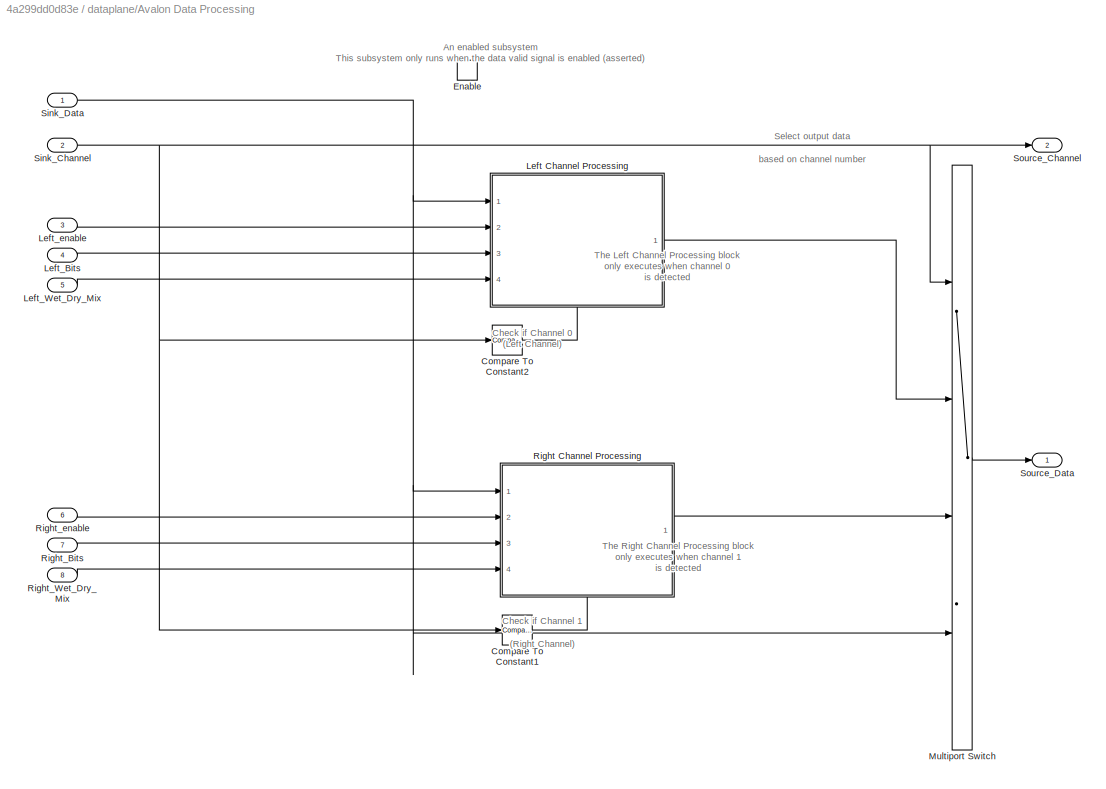
BLOCK [SubSystem] dataplane/Avalon Data Processing
  Ports = [8, 2, 1]
  RequestExecContextInheritance = off
  TreatAsAtomicUnit = on
BLOCK [Reference] dataplane/Avalon Data Processing/Compare To Constant1  REF=simulink/Logic and Bit
Operations/Compare
To Constant
  Ports = [1, 1]
  SourceBlock = simulink/Logic and Bit\nOperations/Compare\nTo Constant
  SourceProductBaseCode = SL
  SourceProductName = Simulink
  SourceType = Compare To Constant
BLOCK [Reference] dataplane/Avalon Data Processing/Compare To Constant2  REF=simulink/Logic and Bit
Operations/Compare
To Constant
  Ports = [1, 1]
  SourceBlock = simulink/Logic and Bit\nOperations/Compare\nTo Constant
  SourceProductBaseCode = SL
  SourceProductName = Simulink
  SourceType = Compare To Constant
BLOCK [EnablePort] dataplane/Avalon Data Processing/Enable
  Ports = []
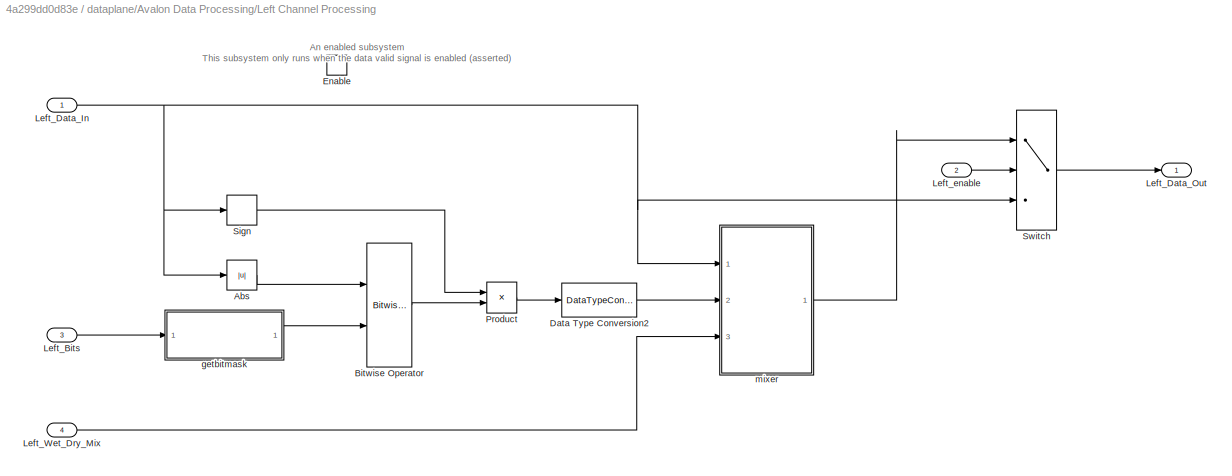
BLOCK [SubSystem] dataplane/Avalon Data Processing/Left Channel Processing
  Ports = [4, 1, 1]
  RequestExecContextInheritance = off
  TreatAsAtomicUnit = on
BLOCK [Abs] dataplane/Avalon Data Processing/Left Channel Processing/Abs
  OutDataTypeStr = fixdt(0,32,28)
  SaturateOnIntegerOverflow = off
BLOCK [Reference] dataplane/Avalon Data Processing/Left Channel Processing/Bitwise Operator  REF=simulink/Logic and Bit
Operations/Bitwise
Operator
  Ports = [2, 1]
  SourceBlock = simulink/Logic and Bit\nOperations/Bitwise\nOperator
  SourceProductBaseCode = SL
  SourceProductName = Simulink
  SourceType = Bitwise Operator
BLOCK [DataTypeConversion] dataplane/Avalon Data Processing/Left Channel Processing/Data Type Conversion2
  OutDataTypeStr = fixdt(1,mp.W_bits,mp.F_bits)
  RndMeth = Floor
  SaturateOnIntegerOverflow = off
BLOCK [EnablePort] dataplane/Avalon Data Processing/Left Channel Processing/Enable
  Ports = []
BLOCK [Inport] dataplane/Avalon Data Processing/Left Channel Processing/Left_Bits
  IconDisplay = Port number
  Port = 3
BLOCK [Inport] dataplane/Avalon Data Processing/Left Channel Processing/Left_Data_In
  IconDisplay = Port number
BLOCK [Outport] dataplane/Avalon Data Processing/Left Channel Processing/Left_Data_Out 
  IconDisplay = Port number
  InitialOutput = 0
  VectorParamsAs1DForOutWhenUnconnected = off
BLOCK [Inport] dataplane/Avalon Data Processing/Left Channel Processing/Left_Wet_Dry_Mix
  IconDisplay = Port number
  Port = 4
BLOCK [Inport] dataplane/Avalon Data Processing/Left Channel Processing/Left_enable
  IconDisplay = Port number
  Port = 2
BLOCK [Product] dataplane/Avalon Data Processing/Left Channel Processing/Product
  InputSameDT = off
  OutDataTypeStr = Inherit: Inherit via internal rule
  Ports = [2, 1]
  RndMeth = Floor
  SaturateOnIntegerOverflow = off
BLOCK [Signum] dataplane/Avalon Data Processing/Left Channel Processing/Sign
BLOCK [Switch] dataplane/Avalon Data Processing/Left Channel Processing/Switch
  Criteria = u2 ~= 0
  InputSameDT = off
  SaturateOnIntegerOverflow = off
BLOCK [SubSystem] dataplane/Avalon Data Processing/Left Channel Processing/getbitmask
  ErrorFcn = Stateflow.Translate.translate
  PermitHierarchicalResolution = ExplicitOnly
  Ports = [1, 1]
  RequestExecContextInheritance = off
  SFBlockType = MATLAB Function
  TreatAsAtomicUnit = on
BLOCK [Demux] dataplane/Avalon Data Processing/Left Channel Processing/getbitmask/ Demux 
  Outputs = 1
  Ports = [1, 1]
BLOCK [S-Function] dataplane/Avalon Data Processing/Left Channel Processing/getbitmask/ SFunction 
  EnableBusSupport = on
  FunctionName = sf_sfun
  PortCounts = [1 2]
  Ports = [1, 2]
  SFcnIsStateOwnerBlock = off
  SFunctionDeploymentMode = off
  Tag = Stateflow S-Function 2
BLOCK [Terminator] dataplane/Avalon Data Processing/Left Channel Processing/getbitmask/ Terminator 
BLOCK [Inport] dataplane/Avalon Data Processing/Left Channel Processing/getbitmask/bitlevel
  IconDisplay = Port number
BLOCK [Outport] dataplane/Avalon Data Processing/Left Channel Processing/getbitmask/bitmask
  IconDisplay = Port number
  VectorParamsAs1DForOutWhenUnconnected = off
BLOCK [SubSystem] dataplane/Avalon Data Processing/Left Channel Processing/mixer
  Ports = [3, 1]
  RequestExecContextInheritance = off
BLOCK [Sum] dataplane/Avalon Data Processing/Left Channel Processing/mixer/Add
  InputSameDT = off
  OutDataTypeStr = fixdt(1,mp.W_bits,mp.F_bits)
  Ports = [2, 1]
  SaturateOnIntegerOverflow = off
BLOCK [Constant] dataplane/Avalon Data Processing/Left Channel Processing/mixer/Constant
  OutDataTypeStr = Inherit: Inherit via back propagation
  SampleTime = -1
BLOCK [Product] dataplane/Avalon Data Processing/Left Channel Processing/mixer/Product
  InputSameDT = off
  OutDataTypeStr = Inherit: Keep MSB
  Ports = [2, 1]
  RndMeth = Floor
  SaturateOnIntegerOverflow = off
BLOCK [Product] dataplane/Avalon Data Processing/Left Channel Processing/mixer/Product1
  InputSameDT = off
  OutDataTypeStr = Inherit: Keep MSB
  Ports = [2, 1]
  RndMeth = Floor
  SaturateOnIntegerOverflow = off
BLOCK [Sum] dataplane/Avalon Data Processing/Left Channel Processing/mixer/Subtract
  Inputs = +-
  Ports = [2, 1]
  SaturateOnIntegerOverflow = off
BLOCK [Inport] dataplane/Avalon Data Processing/Left Channel Processing/mixer/dry_signal
  IconDisplay = Port number
BLOCK [Outport] dataplane/Avalon Data Processing/Left Channel Processing/mixer/output
  IconDisplay = Port number
  VectorParamsAs1DForOutWhenUnconnected = off
BLOCK [Inport] dataplane/Avalon Data Processing/Left Channel Processing/mixer/wet_dry_mix
  IconDisplay = Port number
  Port = 3
BLOCK [Inport] dataplane/Avalon Data Processing/Left Channel Processing/mixer/wet_signal
  IconDisplay = Port number
  Port = 2
BLOCK [Inport] dataplane/Avalon Data Processing/Left_Bits
  IconDisplay = Port number
  Port = 4
BLOCK [Inport] dataplane/Avalon Data Processing/Left_Wet_Dry_Mix
  IconDisplay = Port number
  Port = 5
BLOCK [Inport] dataplane/Avalon Data Processing/Left_enable
  IconDisplay = Port number
  Port = 3
BLOCK [MultiPortSwitch] dataplane/Avalon Data Processing/Multiport Switch
  DataPortOrder = Zero-based contiguous
  InputSameDT = off
  Ports = [4, 1]
  SaturateOnIntegerOverflow = off
  zeroidx = on
BLOCK [SubSystem] dataplane/Avalon Data Processing/Right Channel Processing
  Ports = [4, 1, 1]
  RequestExecContextInheritance = off
  TreatAsAtomicUnit = on
BLOCK [Abs] dataplane/Avalon Data Processing/Right Channel Processing/Abs
  OutDataTypeStr = fixdt(0,32,28)
  SaturateOnIntegerOverflow = off
BLOCK [Reference] dataplane/Avalon Data Processing/Right Channel Processing/Bitwise Operator  REF=simulink/Logic and Bit
Operations/Bitwise
Operator
  Ports = [2, 1]
  SourceBlock = simulink/Logic and Bit\nOperations/Bitwise\nOperator
  SourceProductBaseCode = SL
  SourceProductName = Simulink
  SourceType = Bitwise Operator
BLOCK [DataTypeConversion] dataplane/Avalon Data Processing/Right Channel Processing/Data Type Conversion2
  OutDataTypeStr = fixdt(1,mp.W_bits,mp.F_bits)
  RndMeth = Floor
  SaturateOnIntegerOverflow = off
BLOCK [EnablePort] dataplane/Avalon Data Processing/Right Channel Processing/Enable
  Ports = []
BLOCK [Product] dataplane/Avalon Data Processing/Right Channel Processing/Product
  InputSameDT = off
  OutDataTypeStr = Inherit: Inherit via internal rule
  Ports = [2, 1]
  RndMeth = Floor
  SaturateOnIntegerOverflow = off
BLOCK [Inport] dataplane/Avalon Data Processing/Right Channel Processing/Right_Bits
  IconDisplay = Port number
  Port = 3
BLOCK [Inport] dataplane/Avalon Data Processing/Right Channel Processing/Right_Data_In
  IconDisplay = Port number
BLOCK [Outport] dataplane/Avalon Data Processing/Right Channel Processing/Right_Data_Out 
  IconDisplay = Port number
  InitialOutput = 0
  VectorParamsAs1DForOutWhenUnconnected = off
BLOCK [Inport] dataplane/Avalon Data Processing/Right Channel Processing/Right_Wet_Dry_Mix
  IconDisplay = Port number
  Port = 4
BLOCK [Inport] dataplane/Avalon Data Processing/Right Channel Processing/Right_enable
  IconDisplay = Port number
  Port = 2
BLOCK [Signum] dataplane/Avalon Data Processing/Right Channel Processing/Sign
BLOCK [Switch] dataplane/Avalon Data Processing/Right Channel Processing/Switch
  Criteria = u2 ~= 0
  InputSameDT = off
  SaturateOnIntegerOverflow = off
BLOCK [SubSystem] dataplane/Avalon Data Processing/Right Channel Processing/getbitmask
  ErrorFcn = Stateflow.Translate.translate
  PermitHierarchicalResolution = ExplicitOnly
  Ports = [1, 1]
  RequestExecContextInheritance = off
  SFBlockType = MATLAB Function
  TreatAsAtomicUnit = on
BLOCK [Demux] dataplane/Avalon Data Processing/Right Channel Processing/getbitmask/ Demux 
  Outputs = 1
  Ports = [1, 1]
BLOCK [S-Function] dataplane/Avalon Data Processing/Right Channel Processing/getbitmask/ SFunction 
  EnableBusSupport = on
  FunctionName = sf_sfun
  PortCounts = [1 2]
  Ports = [1, 2]
  SFcnIsStateOwnerBlock = off
  SFunctionDeploymentMode = off
  Tag = Stateflow S-Function 1
BLOCK [Terminator] dataplane/Avalon Data Processing/Right Channel Processing/getbitmask/ Terminator 
BLOCK [Inport] dataplane/Avalon Data Processing/Right Channel Processing/getbitmask/bitlevel
  IconDisplay = Port number
BLOCK [Outport] dataplane/Avalon Data Processing/Right Channel Processing/getbitmask/bitmask
  IconDisplay = Port number
  VectorParamsAs1DForOutWhenUnconnected = off
BLOCK [SubSystem] dataplane/Avalon Data Processing/Right Channel Processing/mixer
  Ports = [3, 1]
  RequestExecContextInheritance = off
BLOCK [Sum] dataplane/Avalon Data Processing/Right Channel Processing/mixer/Add
  InputSameDT = off
  OutDataTypeStr = fixdt(1,mp.W_bits,mp.F_bits)
  Ports = [2, 1]
  SaturateOnIntegerOverflow = off
BLOCK [Constant] dataplane/Avalon Data Processing/Right Channel Processing/mixer/Constant
  OutDataTypeStr = Inherit: Inherit via back propagation
  SampleTime = -1
BLOCK [Product] dataplane/Avalon Data Processing/Right Channel Processing/mixer/Product
  InputSameDT = off
  OutDataTypeStr = Inherit: Keep MSB
  Ports = [2, 1]
  RndMeth = Floor
  SaturateOnIntegerOverflow = off
BLOCK [Product] dataplane/Avalon Data Processing/Right Channel Processing/mixer/Product1
  InputSameDT = off
  OutDataTypeStr = Inherit: Keep MSB
  Ports = [2, 1]
  RndMeth = Floor
  SaturateOnIntegerOverflow = off
BLOCK [Sum] dataplane/Avalon Data Processing/Right Channel Processing/mixer/Subtract
  Inputs = +-
  Ports = [2, 1]
  SaturateOnIntegerOverflow = off
BLOCK [Inport] dataplane/Avalon Data Processing/Right Channel Processing/mixer/dry_signal
  IconDisplay = Port number
BLOCK [Outport] dataplane/Avalon Data Processing/Right Channel Processing/mixer/output
  IconDisplay = Port number
  VectorParamsAs1DForOutWhenUnconnected = off
BLOCK [Inport] dataplane/Avalon Data Processing/Right Channel Processing/mixer/wet_dry_mix
  IconDisplay = Port number
  Port = 3
BLOCK [Inport] dataplane/Avalon Data Processing/Right Channel Processing/mixer/wet_signal
  IconDisplay = Port number
  Port = 2
BLOCK [Inport] dataplane/Avalon Data Processing/Right_Bits
  IconDisplay = Port number
  Port = 7
BLOCK [Inport] dataplane/Avalon Data Processing/Right_Wet_Dry_Mix
  IconDisplay = Port number
  Port = 8
BLOCK [Inport] dataplane/Avalon Data Processing/Right_enable
  IconDisplay = Port number
  Port = 6
BLOCK [Inport] dataplane/Avalon Data Processing/Sink_Channel
  IconDisplay = Port number
  Port = 2
BLOCK [Inport] dataplane/Avalon Data Processing/Sink_Data
  IconDisplay = Port number
BLOCK [Outport] dataplane/Avalon Data Processing/Source_Channel
  IconDisplay = Port number
  InitialOutput = 0
  Port = 2
  VectorParamsAs1DForOutWhenUnconnected = off
BLOCK [Outport] dataplane/Avalon Data Processing/Source_Data
  IconDisplay = Port number
  InitialOutput = 0
  VectorParamsAs1DForOutWhenUnconnected = off
BLOCK [Inport] dataplane/avalon_sink_channel
  IconDisplay = Port number
  Port = 3
BLOCK [Inport] dataplane/avalon_sink_data
  IconDisplay = Port number
  Port = 2
BLOCK [Inport] dataplane/avalon_sink_error
  IconDisplay = Port number
  Port = 4
BLOCK [Inport] dataplane/avalon_sink_valid
  IconDisplay = Port number
BLOCK [Outport] dataplane/avalon_source_channel
  IconDisplay = Port number
  Port = 3
  VectorParamsAs1DForOutWhenUnconnected = off
BLOCK [Outport] dataplane/avalon_source_data
  IconDisplay = Port number
  Port = 2
  VectorParamsAs1DForOutWhenUnconnected = off
BLOCK [Outport] dataplane/avalon_source_error
  IconDisplay = Port number
  Port = 4
  VectorParamsAs1DForOutWhenUnconnected = off
BLOCK [Outport] dataplane/avalon_source_valid
  IconDisplay = Port number
  VectorParamsAs1DForOutWhenUnconnected = off
BLOCK [Inport] dataplane/register_control_bits
  IconDisplay = Port number
  Port = 6
BLOCK [Inport] dataplane/register_control_enable
  IconDisplay = Port number
  Port = 5
BLOCK [Inport] dataplane/register_control_wet_dry_mix
  IconDisplay = Port number
  Port = 7
ANNOTATION (root): Steps for converting DataPlane block to VHDL
ANNOTATION (root): Run simulation first before clicking this box to Generate VHDL
ANNOTATION (root): Bitcrusher Avalon Stream Processing Example
ANNOTATION (root): This example shows how to connect the ADC (output) of the audio codec to the DAC (input) of the audio codec (AD1939). Audio data is just passed through with bit quatization applied to the left and right channels. Data is streamed in the data plane using the Avalon Streaming interface that uses the data-channel-valid protocol.
ANNOTATION (root): Author: Ross K. Snider Company: Flat Earth Inc 985 Technology Blvd Bozeman, MT 59718 <email> Create Date: September 24, 2019 Tool Version: MATLAB R2019a Revision: 1.0 License: MIT License (see license in DocBlock)
ANNOTATION (root): The block Register Control Signals contains the control signals for the DataPlane block. These are the registers that Linux will control. The naming convention for the control signals are: Register_Control_
ANNOTATION (root): The data plane is the block that gets converted to VHDL.
ANNOTATION Capture Avalon Signals: Note: If these "To Workspace" variables show up under a variable called "out", Open the Configure Logging... window (Simulation->Output->Configure Logging...) and deselect the checkbox "Single simulation output:" found under the "Save to workspace or file" section.
ANNOTATION Generate Avalon Signals: Avalon Streaming Sink Signals Note: We are assuming a specific system clock frequency that these signals are being clock in at. The interface needs to be regenerated if this system clock frequency changes. Change system clock frequency in InitFcn callback in Model Explorer. -- Avalon streaming slave interface (sink) AD1939_DAC_data : in std_logic_vector(31 downto 0); -- W=32; F=28; Signed 2's Comp...<+545ch>
ANNOTATION Register Control Signals: Control Signals that will be coming from Linux via memory mapped registers need to have names containing the prefix "register_control_" (all lower case)
ANNOTATION dataplane: Avalon streaming interface signals need to have the names containing the prefix "avalon_" (all lower case)
ANNOTATION dataplane: Control Signals that will be coming from Linux via memory mapped registers need to have names containing the prefix "register_control_" (all lower case)
ANNOTATION dataplane: Ignore Errors. Assuming no errors coming from the ADC and errors going to DAC will be ignored. Any Error streaming needs to be done inside Avalon Data Processing block.
ANNOTATION dataplane: The Avalon Data Processing Block performs DSP on the left and right channels.
ANNOTATION dataplane: The Avalon Data Processing block only executes when valid is asserted
ANNOTATION dataplane/Avalon Data Processing: Check if Channel 0 (Left Channel)
ANNOTATION dataplane/Avalon Data Processing: Check if Channel 1 (Right Channel)
ANNOTATION dataplane/Avalon Data Processing: An enabled subsystem This subsystem only runs when the data valid signal is enabled (asserted)
ANNOTATION dataplane/Avalon Data Processing: Select output data based on channel number
ANNOTATION dataplane/Avalon Data Processing: The Left Channel Processing block only executes when channel 0 is detected
ANNOTATION dataplane/Avalon Data Processing: The Right Channel Processing block only executes when channel 1 is detected
ANNOTATION dataplane/Avalon Data Processing/Left Channel Processing: An enabled subsystem This subsystem only runs when the data valid signal is enabled (asserted)
ANNOTATION dataplane/Avalon Data Processing/Left Channel Processing/mixer: wet/dry mix: The wet/dry mix is the percentage of the signal that is wet (i.e. effected). Since $\text{wet_dry_mix} \in [0,1]$ , we then have the following relations: $\text{wet_gain} = \text{wet_dry_mix} \\ \text{dry_gain} = 1 - \text{wet_dry_mix}$
ANNOTATION dataplane/Avalon Data Processing/Right Channel Processing: An enabled subsystem This subsystem only runs when the data valid signal is enabled (asserted)
ANNOTATION dataplane/Avalon Data Processing/Right Channel Processing/mixer: wet/dry mix: The wet/dry mix is the percentage of the signal that is wet (i.e. effected). Since $\text{wet_dry_mix} \in [0,1]$ , we then have the following relations: $\text{wet_gain} = \text{wet_dry_mix} \\ \text{dry_gain} = 1 - \text{wet_dry_mix}$
LINE Capture Avalon Signals/channel:1 -> Capture Avalon Signals/To Workspace2:1
LINE Capture Avalon Signals/data:1 -> Capture Avalon Signals/To Workspace:1
LINE Capture Avalon Signals/error:1 -> Capture Avalon Signals/To Workspace3:1
LINE Capture Avalon Signals/valid:1 -> Capture Avalon Signals/To Workspace1:1
LINE Generate Avalon Signals/Avalon Source Channel:1 -> Generate Avalon Signals/Data Type Conversion1:1
LINE Generate Avalon Signals/Avalon Source Data :1 -> Generate Avalon Signals/Data Type Conversion:1
LINE Generate Avalon Signals/Avalon Source Error:1 -> Generate Avalon Signals/Data Type Conversion3:1
LINE Generate Avalon Signals/Avalon Source Valid:1 -> Generate Avalon Signals/Data Type Conversion2:1
LINE Generate Avalon Signals/Data Type Conversion1:1 -> Generate Avalon Signals/channel:1
LINE Generate Avalon Signals/Data Type Conversion2:1 -> Generate Avalon Signals/valid:1
LINE Generate Avalon Signals/Data Type Conversion3:1 -> Generate Avalon Signals/error:1
LINE Generate Avalon Signals/Data Type Conversion:1 -> Generate Avalon Signals/data:1
LINE Generate Avalon Signals:1 -> dataplane:1
LINE Generate Avalon Signals:2 -> dataplane:2
LINE Generate Avalon Signals:3 -> dataplane:3
LINE Generate Avalon Signals:4 -> dataplane:4
LINE Register Control Signals/Data Type Conversion1:1 -> Register Control Signals/register_control_wet_dry_mix:1
LINE Register Control Signals/Data Type Conversion2:1 -> Register Control Signals/register_control_bits:1
LINE Register Control Signals/Data Type Conversion3:1 -> Register Control Signals/register_control_enable:1
LINE Register Control Signals/Time Series Signal from Workspace 1:1 -> Register Control Signals/Data Type Conversion3:1
LINE Register Control Signals/Time Series Signal from Workspace 2:1 -> Register Control Signals/Data Type Conversion2:1
LINE Register Control Signals/Time Series Signal from Workspace 3:1 -> Register Control Signals/Data Type Conversion1:1
LINE Register Control Signals:1 -> dataplane:5
LINE Register Control Signals:2 -> dataplane:6
LINE Register Control Signals:3 -> dataplane:7
LINE dataplane/Avalon Data Processing/Compare To Constant1:1 -> dataplane/Avalon Data Processing/Right Channel Processing:enable
LINE dataplane/Avalon Data Processing/Compare To Constant2:1 -> dataplane/Avalon Data Processing/Left Channel Processing:enable
LINE dataplane/Avalon Data Processing/Left Channel Processing/Abs:1 -> dataplane/Avalon Data Processing/Left Channel Processing/Bitwise Operator:1
LINE dataplane/Avalon Data Processing/Left Channel Processing/Bitwise Operator:1 -> dataplane/Avalon Data Processing/Left Channel Processing/Product:2
LINE dataplane/Avalon Data Processing/Left Channel Processing/Data Type Conversion2:1 -> dataplane/Avalon Data Processing/Left Channel Processing/mixer:2
LINE dataplane/Avalon Data Processing/Left Channel Processing/Left_Bits:1 -> dataplane/Avalon Data Processing/Left Channel Processing/getbitmask:1
NET dataplane/Avalon Data Processing/Left Channel Processing/Left_Data_In:1 -> dataplane/Avalon Data Processing/Left Channel Processing/Abs:1, dataplane/Avalon Data Processing/Left Channel Processing/Sign:1, dataplane/Avalon Data Processing/Left Channel Processing/Switch:3, dataplane/Avalon Data Processing/Left Channel Processing/mixer:1
LINE dataplane/Avalon Data Processing/Left Channel Processing/Left_Wet_Dry_Mix:1 -> dataplane/Avalon Data Processing/Left Channel Processing/mixer:3
LINE dataplane/Avalon Data Processing/Left Channel Processing/Left_enable:1 -> dataplane/Avalon Data Processing/Left Channel Processing/Switch:2
LINE dataplane/Avalon Data Processing/Left Channel Processing/Product:1 -> dataplane/Avalon Data Processing/Left Channel Processing/Data Type Conversion2:1
LINE dataplane/Avalon Data Processing/Left Channel Processing/Sign:1 -> dataplane/Avalon Data Processing/Left Channel Processing/Product:1
LINE dataplane/Avalon Data Processing/Left Channel Processing/Switch:1 -> dataplane/Avalon Data Processing/Left Channel Processing/Left_Data_Out :1
LINE dataplane/Avalon Data Processing/Left Channel Processing/getbitmask:1 -> dataplane/Avalon Data Processing/Left Channel Processing/Bitwise Operator:2
LINE dataplane/Avalon Data Processing/Left Channel Processing/mixer/Add:1 -> dataplane/Avalon Data Processing/Left Channel Processing/mixer/output:1
LINE dataplane/Avalon Data Processing/Left Channel Processing/mixer/Constant:1 -> dataplane/Avalon Data Processing/Left Channel Processing/mixer/Subtract:1
LINE dataplane/Avalon Data Processing/Left Channel Processing/mixer/Product1:1 -> dataplane/Avalon Data Processing/Left Channel Processing/mixer/Add:2
LINE dataplane/Avalon Data Processing/Left Channel Processing/mixer/Product:1 -> dataplane/Avalon Data Processing/Left Channel Processing/mixer/Add:1
LINE dataplane/Avalon Data Processing/Left Channel Processing/mixer/Subtract:1 -> dataplane/Avalon Data Processing/Left Channel Processing/mixer/Product:2
LINE dataplane/Avalon Data Processing/Left Channel Processing/mixer/dry_signal:1 -> dataplane/Avalon Data Processing/Left Channel Processing/mixer/Product:1
NET dataplane/Avalon Data Processing/Left Channel Processing/mixer/wet_dry_mix:1 -> dataplane/Avalon Data Processing/Left Channel Processing/mixer/Product1:1, dataplane/Avalon Data Processing/Left Channel Processing/mixer/Subtract:2
LINE dataplane/Avalon Data Processing/Left Channel Processing/mixer/wet_signal:1 -> dataplane/Avalon Data Processing/Left Channel Processing/mixer/Product1:2
LINE dataplane/Avalon Data Processing/Left Channel Processing/mixer:1 -> dataplane/Avalon Data Processing/Left Channel Processing/Switch:1
LINE dataplane/Avalon Data Processing/Left Channel Processing:1 -> dataplane/Avalon Data Processing/Multiport Switch:2
LINE dataplane/Avalon Data Processing/Left_Bits:1 -> dataplane/Avalon Data Processing/Left Channel Processing:3
LINE dataplane/Avalon Data Processing/Left_Wet_Dry_Mix:1 -> dataplane/Avalon Data Processing/Left Channel Processing:4
LINE dataplane/Avalon Data Processing/Left_enable:1 -> dataplane/Avalon Data Processing/Left Channel Processing:2
LINE dataplane/Avalon Data Processing/Multiport Switch:1 -> dataplane/Avalon Data Processing/Source_Data:1
LINE dataplane/Avalon Data Processing/Right Channel Processing/Abs:1 -> dataplane/Avalon Data Processing/Right Channel Processing/Bitwise Operator:1
LINE dataplane/Avalon Data Processing/Right Channel Processing/Bitwise Operator:1 -> dataplane/Avalon Data Processing/Right Channel Processing/Product:2
LINE dataplane/Avalon Data Processing/Right Channel Processing/Data Type Conversion2:1 -> dataplane/Avalon Data Processing/Right Channel Processing/mixer:2
LINE dataplane/Avalon Data Processing/Right Channel Processing/Product:1 -> dataplane/Avalon Data Processing/Right Channel Processing/Data Type Conversion2:1
LINE dataplane/Avalon Data Processing/Right Channel Processing/Right_Bits:1 -> dataplane/Avalon Data Processing/Right Channel Processing/getbitmask:1
NET dataplane/Avalon Data Processing/Right Channel Processing/Right_Data_In:1 -> dataplane/Avalon Data Processing/Right Channel Processing/Abs:1, dataplane/Avalon Data Processing/Right Channel Processing/Sign:1, dataplane/Avalon Data Processing/Right Channel Processing/Switch:3, dataplane/Avalon Data Processing/Right Channel Processing/mixer:1
LINE dataplane/Avalon Data Processing/Right Channel Processing/Right_Wet_Dry_Mix:1 -> dataplane/Avalon Data Processing/Right Channel Processing/mixer:3
LINE dataplane/Avalon Data Processing/Right Channel Processing/Right_enable:1 -> dataplane/Avalon Data Processing/Right Channel Processing/Switch:2
LINE dataplane/Avalon Data Processing/Right Channel Processing/Sign:1 -> dataplane/Avalon Data Processing/Right Channel Processing/Product:1
LINE dataplane/Avalon Data Processing/Right Channel Processing/Switch:1 -> dataplane/Avalon Data Processing/Right Channel Processing/Right_Data_Out :1
LINE dataplane/Avalon Data Processing/Right Channel Processing/getbitmask:1 -> dataplane/Avalon Data Processing/Right Channel Processing/Bitwise Operator:2
LINE dataplane/Avalon Data Processing/Right Channel Processing/mixer/Add:1 -> dataplane/Avalon Data Processing/Right Channel Processing/mixer/output:1
LINE dataplane/Avalon Data Processing/Right Channel Processing/mixer/Constant:1 -> dataplane/Avalon Data Processing/Right Channel Processing/mixer/Subtract:1
LINE dataplane/Avalon Data Processing/Right Channel Processing/mixer/Product1:1 -> dataplane/Avalon Data Processing/Right Channel Processing/mixer/Add:2
LINE dataplane/Avalon Data Processing/Right Channel Processing/mixer/Product:1 -> dataplane/Avalon Data Processing/Right Channel Processing/mixer/Add:1
LINE dataplane/Avalon Data Processing/Right Channel Processing/mixer/Subtract:1 -> dataplane/Avalon Data Processing/Right Channel Processing/mixer/Product:2
LINE dataplane/Avalon Data Processing/Right Channel Processing/mixer/dry_signal:1 -> dataplane/Avalon Data Processing/Right Channel Processing/mixer/Product:1
NET dataplane/Avalon Data Processing/Right Channel Processing/mixer/wet_dry_mix:1 -> dataplane/Avalon Data Processing/Right Channel Processing/mixer/Product1:1, dataplane/Avalon Data Processing/Right Channel Processing/mixer/Subtract:2
LINE dataplane/Avalon Data Processing/Right Channel Processing/mixer/wet_signal:1 -> dataplane/Avalon Data Processing/Right Channel Processing/mixer/Product1:2
LINE dataplane/Avalon Data Processing/Right Channel Processing/mixer:1 -> dataplane/Avalon Data Processing/Right Channel Processing/Switch:1
LINE dataplane/Avalon Data Processing/Right Channel Processing:1 -> dataplane/Avalon Data Processing/Multiport Switch:3
LINE dataplane/Avalon Data Processing/Right_Bits:1 -> dataplane/Avalon Data Processing/Right Channel Processing:3
LINE dataplane/Avalon Data Processing/Right_Wet_Dry_Mix:1 -> dataplane/Avalon Data Processing/Right Channel Processing:4
LINE dataplane/Avalon Data Processing/Right_enable:1 -> dataplane/Avalon Data Processing/Right Channel Processing:2
NET dataplane/Avalon Data Processing/Sink_Channel:1 -> dataplane/Avalon Data Processing/Compare To Constant1:1, dataplane/Avalon Data Processing/Compare To Constant2:1, dataplane/Avalon Data Processing/Multiport Switch:1, dataplane/Avalon Data Processing/Source_Channel:1
NET dataplane/Avalon Data Processing/Sink_Data:1 -> dataplane/Avalon Data Processing/Left Channel Processing:1, dataplane/Avalon Data Processing/Multiport Switch:4, dataplane/Avalon Data Processing/Right Channel Processing:1
LINE dataplane/Avalon Data Processing:1 -> dataplane/avalon_source_data:1
LINE dataplane/Avalon Data Processing:2 -> dataplane/avalon_source_channel:1
LINE dataplane/avalon_sink_channel:1 -> dataplane/Avalon Data Processing:2
LINE dataplane/avalon_sink_data:1 -> dataplane/Avalon Data Processing:1
LINE dataplane/avalon_sink_error:1 -> dataplane/avalon_source_error:1
NET dataplane/avalon_sink_valid:1 -> dataplane/Avalon Data Processing:enable, dataplane/avalon_source_valid:1
NET dataplane/register_control_bits:1 -> dataplane/Avalon Data Processing:4, dataplane/Avalon Data Processing:7
NET dataplane/register_control_enable:1 -> dataplane/Avalon Data Processing:3, dataplane/Avalon Data Processing:6
NET dataplane/register_control_wet_dry_mix:1 -> dataplane/Avalon Data Processing:5, dataplane/Avalon Data Processing:8
LINE dataplane:1 -> Capture Avalon Signals:1
LINE dataplane:2 -> Capture Avalon Signals:2
LINE dataplane:3 -> Capture Avalon Signals:3
LINE dataplane:4 -> Capture Avalon Signals:4
note: NET lines group one-source signal fan-out (src -> all destinations, sorted); 1:1 wires keep LINE
CHART dataplane/Avalon Data Processing/Right Channel Processing/getbitmask states=1 transitions=1
  STATE_LABEL 'eML_blk_kernel()'
  STATE_LABEL 'SCRIPT:\nfunction bitmask = getbitmask(bitlevel)\nbitmask=fi(0,0,32,28);\nswitch(bitlevel)\n    case 0\n        bitmask = fi(0.0000000000000000000000000000,0,32,28);\n    case 1\n        bitmask = fi(8.0000000000000000000000000000,0,32,28);\n    case 2\n        bitmask = fi(12.0000000000000000000000000000,0,32,28);\n    case 3\n        bitmask = fi(14.0000000000000000000000000000,0,32,28);\n    case 4\n       ...<+2155ch>'
CHART dataplane/Avalon Data Processing/Left Channel Processing/getbitmask states=1 transitions=1
  STATE_LABEL 'eML_blk_kernel()'
  STATE_LABEL 'SCRIPT:\nfunction bitmask = getbitmask(bitlevel)\nbitmask=fi(0,0,32,28);\nswitch(bitlevel)\n    case 0\n        bitmask = fi(0.0000000000000000000000000000,0,32,28);\n    case 1\n        bitmask = fi(8.0000000000000000000000000000,0,32,28);\n    case 2\n        bitmask = fi(12.0000000000000000000000000000,0,32,28);\n    case 3\n        bitmask = fi(14.0000000000000000000000000000,0,32,28);\n    case 4\n       ...<+2155ch>'
